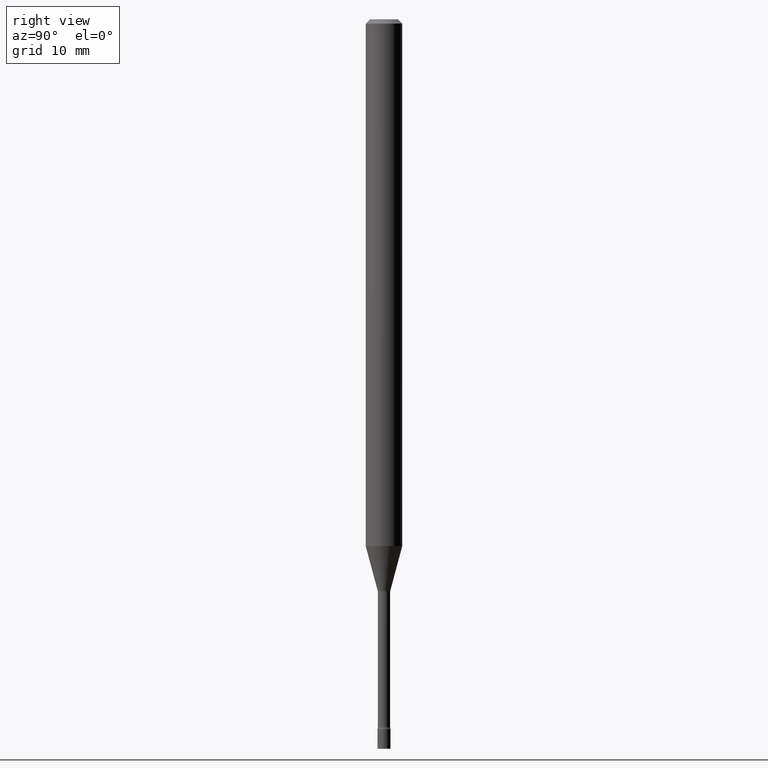
[diagram: clean part render]
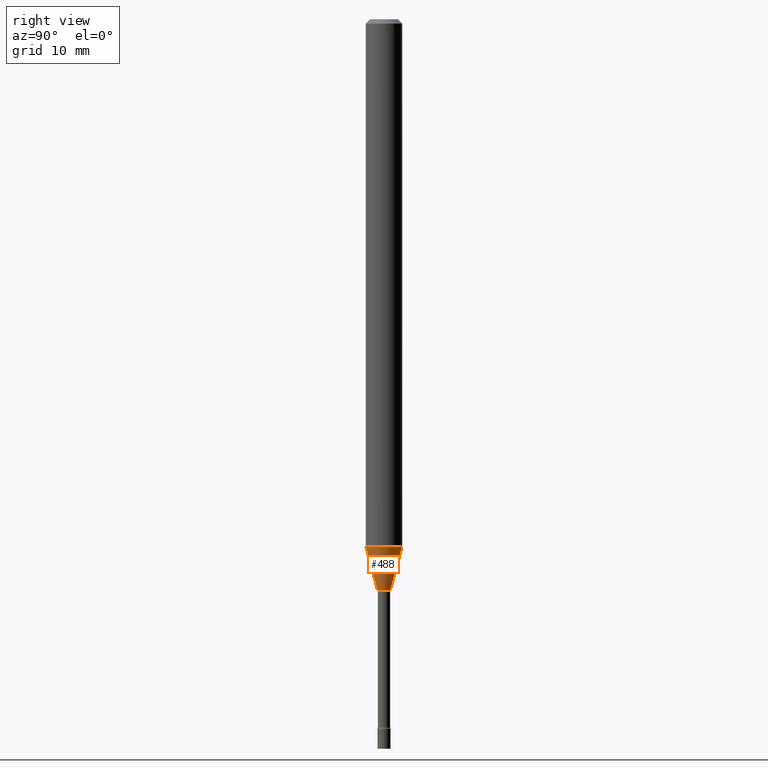
[diagram: same view with one face highlighted and labeled with its STEP entity id]
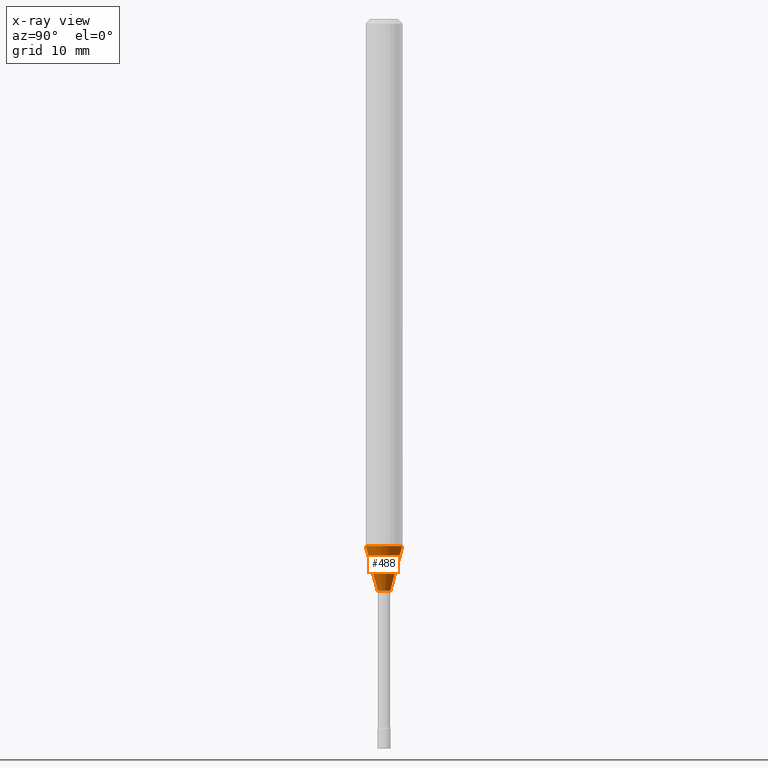
[diagram: x-ray of the same camera — body ghosted, the highlighted face saturated]
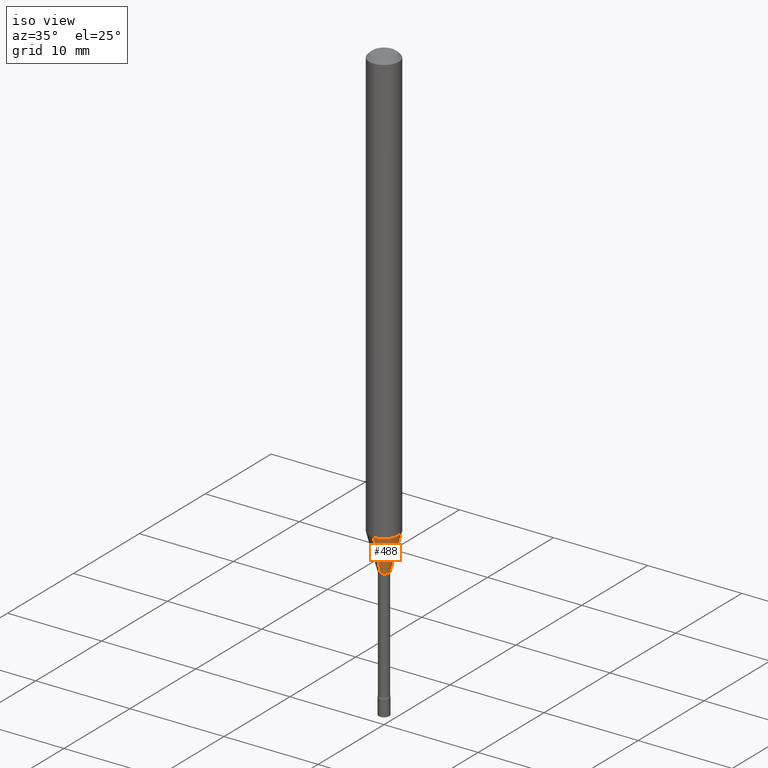
[diagram: same view with one face highlighted and labeled with its STEP entity id]
A machine part, right view. The second image highlights one B-rep face of the part: STEP entity #488.
The next image is the same camera in x-ray: the body ghosted, the highlighted face saturated — about 0% of this face is hidden behind the body in this view.
A second angle (iso view) of the same face is appended — the face is thin or edge-on in the first view.
In plain terms, the highlighted conical surface has half-angle 15 deg.
Its self-contained STEP definition (entity closure, byte-faithful):
#15 = DIRECTION ( 'NONE',  ( 1.839019923739596371E-15, 0.2588190451025244032, 0.9659258262890673130 ) ) ;
#20 = CARTESIAN_POINT ( 'NONE',  ( 4.788376799881579969E-29, -6.836754174782015396E-15, -1.958092501787273232 ) ) ;
#49 = LINE ( 'NONE', #52, #406 ) ;
#52 = CARTESIAN_POINT ( 'NONE',  ( 1.539114621044086185E-16, 0.02166111260565713875, -1.958092501787273232 ) ) ;
#53 = EDGE_CURVE ( 'NONE', #161, #453, #103, .T. ) ;
#58 = EDGE_CURVE ( 'NONE', #442, #161, #73, .T. ) ;
#73 = LINE ( 'NONE', #224, #181 ) ;
#88 = ORIENTED_EDGE ( 'NONE', *, *, #53, .F. ) ;
#103 = CIRCLE ( 'NONE', #276, 0.06250000000000000000 ) ;
#139 = DIRECTION ( 'NONE',  ( -2.445429312206103475E-29, 3.491537896468978830E-15, 1.000000000000000000 ) ) ;
#161 = VERTEX_POINT ( 'NONE', #345 ) ;
#181 = VECTOR ( 'NONE', #394, 39.37007874015748854 ) ;
#196 = EDGE_CURVE ( 'NONE', #442, #295, #361, .T. ) ;
#200 = CONICAL_SURFACE ( 'NONE', #373, 0.02166111260566397703, 0.2617993877991496854 ) ;
#220 = EDGE_LOOP ( 'NONE', ( #321, #339, #88, #311 ) ) ;
#224 = CARTESIAN_POINT ( 'NONE',  ( -1.512587408824631926E-16, -0.02166111260567081531, -1.958092501787273232 ) ) ;
#276 = AXIS2_PLACEMENT_3D ( 'NONE', #310, #520, #280 ) ;
#280 = DIRECTION ( 'NONE',  ( -6.982962677686265922E-15, -1.000000000000000000, 4.370956789862821150E-15 ) ) ;
#293 = CARTESIAN_POINT ( 'NONE',  ( 4.440892098501065952E-16, 0.06249999999999367173, -1.805679699107027414 ) ) ;
#295 = VERTEX_POINT ( 'NONE', #322 ) ;
#302 = DIRECTION ( 'NONE',  ( -6.982962677686266711E-15, -1.000000000000000000, 0.000000000000000000 ) ) ;
#310 = CARTESIAN_POINT ( 'NONE',  ( 4.415662064651821440E-29, -6.304599098316888834E-15, -1.805679699107027192 ) ) ;
#311 = ORIENTED_EDGE ( 'NONE', *, *, #58, .F. ) ;
#321 = ORIENTED_EDGE ( 'NONE', *, *, #196, .T. ) ;
#322 = CARTESIAN_POINT ( 'NONE',  ( 2.990003359772577671E-16, 0.02166111260565713875, -1.958092501787273232 ) ) ;
#324 = AXIS2_PLACEMENT_3D ( 'NONE', #378, #139, #302 ) ;
#339 = ORIENTED_EDGE ( 'NONE', *, *, #480, .T. ) ;
#345 = CARTESIAN_POINT ( 'NONE',  ( -4.364351673553475918E-16, -0.06250000000000632827, -1.805679699107026970 ) ) ;
#361 = CIRCLE ( 'NONE', #324, 0.02166111260566397703 ) ;
#373 = AXIS2_PLACEMENT_3D ( 'NONE', #20, #500, #463 ) ;
#378 = CARTESIAN_POINT ( 'NONE',  ( 4.788376799881579969E-29, -6.836754174782015396E-15, -1.958092501787273232 ) ) ;
#394 = DIRECTION ( 'NONE',  ( -1.807323732225326195E-15, -0.2588190451025176309, 0.9659258262890690894 ) ) ;
#406 = VECTOR ( 'NONE', #15, 39.37007874015748143 ) ;
#430 = CARTESIAN_POINT ( 'NONE',  ( -1.512587408824631926E-16, -0.02166111260567081531, -1.958092501787273232 ) ) ;
#442 = VERTEX_POINT ( 'NONE', #430 ) ;
#453 = VERTEX_POINT ( 'NONE', #293 ) ;
#463 = DIRECTION ( 'NONE',  ( -6.982962677686266711E-15, -1.000000000000000000, 0.000000000000000000 ) ) ;
#480 = EDGE_CURVE ( 'NONE', #295, #453, #49, .T. ) ;
#488 = ADVANCED_FACE ( 'NONE', ( #508 ), #200, .T. ) ;
#500 = DIRECTION ( 'NONE',  ( -2.445429312206103475E-29, 3.491537896468978830E-15, 1.000000000000000000 ) ) ;
#508 = FACE_OUTER_BOUND ( 'NONE', #220, .T. ) ;
#520 = DIRECTION ( 'NONE',  ( -2.445429312206103475E-29, 3.491537896468978830E-15, 1.000000000000000000 ) ) ;